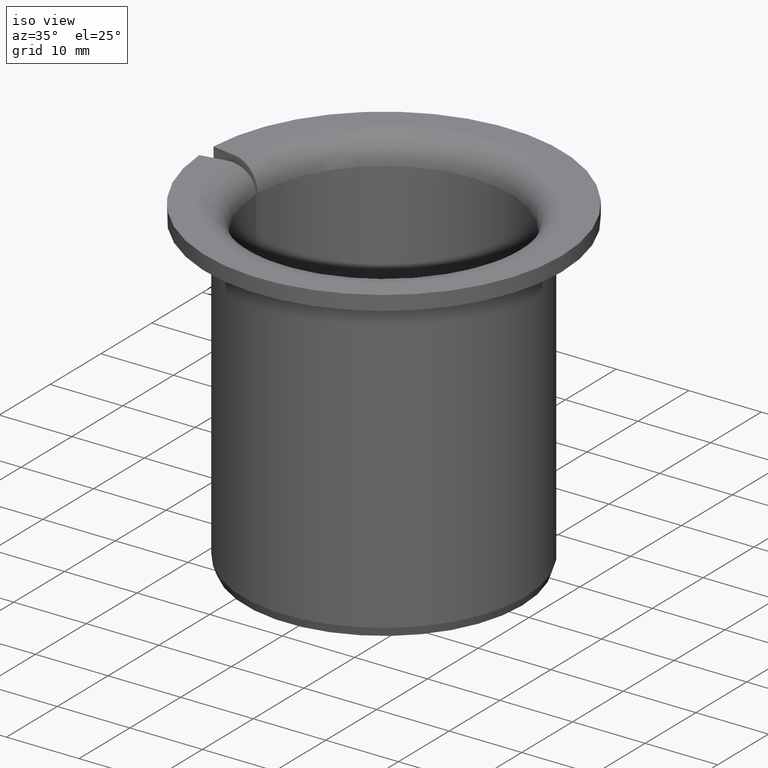
[diagram: clean part render]
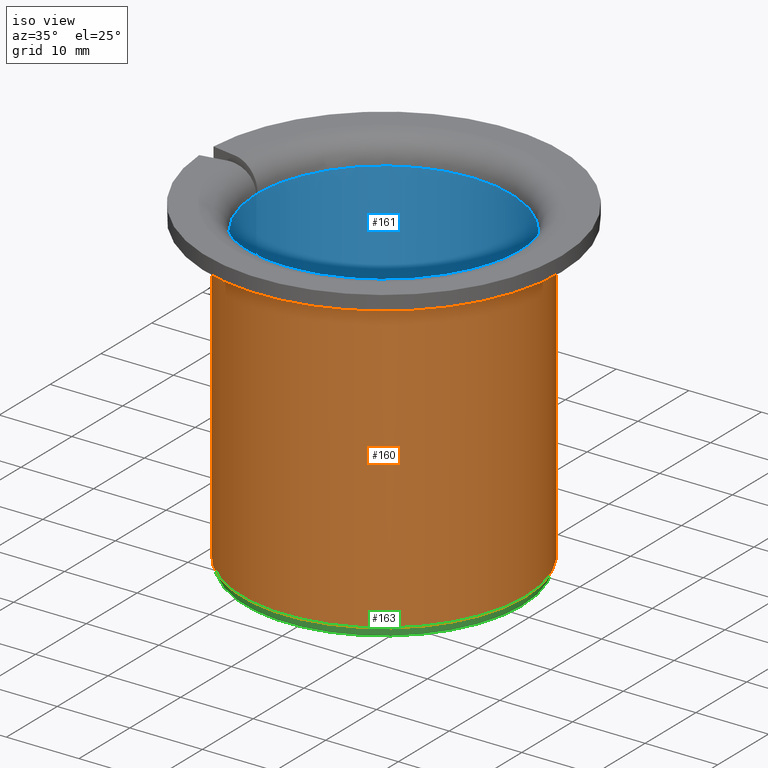
[diagram: same view with three faces highlighted in distinct colors, each labeled with its STEP entity id]
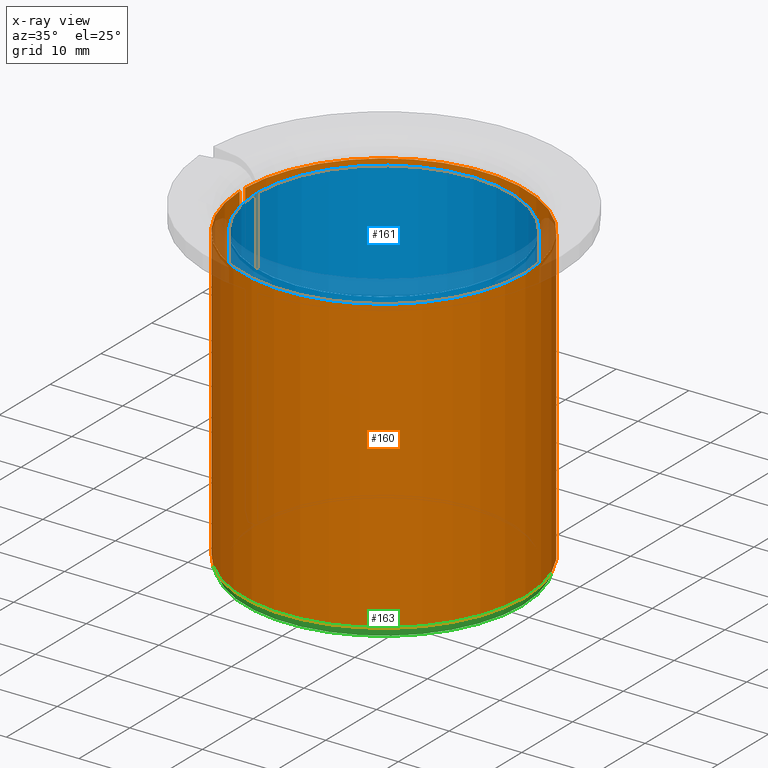
[diagram: x-ray of the same camera — body ghosted, the three highlighted faces saturated]
A machine part, iso view with three faces highlighted in distinct colors.
The next image is the same camera in x-ray (body ghosted, the three faces saturated) — at least one of them is partly hidden behind the body in this view.
Their STEP definitions:

[orange] entity #160 — the highlighted cylindrical surface (partial cylindrical patch) has radius 19.5 mm, axis along (-0, 0, -1).
#160=ADVANCED_FACE('',(#181),#182,.T.);
#181=FACE_OUTER_BOUND('',#206,.T.);
#182=CYLINDRICAL_SURFACE('',#207,0.0195);
#206=EDGE_LOOP('',(#271,#272,#273,#274));
#207=AXIS2_PLACEMENT_3D('',#275,#276,#277);
#271=ORIENTED_EDGE('',*,*,#330,.T.);
#272=ORIENTED_EDGE('',*,*,#336,.T.);
#273=ORIENTED_EDGE('',*,*,#337,.F.);
#274=ORIENTED_EDGE('',*,*,#317,.F.);
#275=CARTESIAN_POINT('',(0.0,0.0,0.0));
#276=DIRECTION('',(0.0,-6.12323399573677E-017,-1.0));
#277=DIRECTION('',(0.0,1.0,-6.12323399573677E-017));
#317=EDGE_CURVE('',#351,#353,#354,.T.);
#330=EDGE_CURVE('',#351,#374,#376,.T.);
#336=EDGE_CURVE('',#374,#384,#385,.T.);
#337=EDGE_CURVE('',#353,#384,#386,.T.);
#351=VERTEX_POINT('',#421);
#353=VERTEX_POINT('',#436);
#354=LINE('',#437,#438);
#374=VERTEX_POINT('',#486);
#376=CIRCLE('',#501,0.0195);
#384=VERTEX_POINT('',#512);
#385=LINE('',#513,#514);
#386=CIRCLE('',#515,0.0195);
#421=CARTESIAN_POINT('',(0.0194928579205826,-0.00052772160082575,0.0415));
#436=CARTESIAN_POINT('',(0.0194928579205826,-0.000527721600825753,0.0012));
#437=CARTESIAN_POINT('',(0.0194928579205826,-0.000527721600825752,-1.58123002031201E-020));
#438=VECTOR('',#529,1.0);
#486=CARTESIAN_POINT('',(0.0194928579205826,0.000527721600825756,0.0415));
#501=AXIS2_PLACEMENT_3D('',#547,#548,#549);
#512=CARTESIAN_POINT('',(0.0194928579205826,0.000527721600825755,0.0012));
#513=CARTESIAN_POINT('',(0.0194928579205826,0.000527721600825753,5.23181739225989E-021));
#514=VECTOR('',#559,1.0);
#515=AXIS2_PLACEMENT_3D('',#560,#561,#562);
#529=DIRECTION('',(0.0,-6.12323399573677E-017,-1.0));
#547=CARTESIAN_POINT('',(0.0,3.46944695195362E-018,0.0415));
#548=DIRECTION('',(0.0,-6.12323399573677E-017,-1.0));
#549=DIRECTION('',(0.0,1.0,-6.12323399573677E-017));
#559=DIRECTION('',(0.0,-6.12323399573677E-017,-1.0));
#560=CARTESIAN_POINT('',(0.0,0.0,0.0012));
#561=DIRECTION('',(0.0,-6.12323399573677E-017,-1.0));
#562=DIRECTION('',(0.0,1.0,-6.12323399573677E-017));

[blue] entity #161 — the highlighted cylindrical surface (partial cylindrical patch) has radius 17.5 mm, axis along (-0, 0, -1).
#161=ADVANCED_FACE('',(#183),#184,.F.);
#183=FACE_OUTER_BOUND('',#208,.T.);
#184=CYLINDRICAL_SURFACE('',#209,0.0175);
#208=EDGE_LOOP('',(#278,#279,#280,#281));
#209=AXIS2_PLACEMENT_3D('',#282,#283,#284);
#278=ORIENTED_EDGE('',*,*,#324,.T.);
#279=ORIENTED_EDGE('',*,*,#338,.T.);
#280=ORIENTED_EDGE('',*,*,#325,.F.);
#281=ORIENTED_EDGE('',*,*,#321,.F.);
#282=CARTESIAN_POINT('',(0.0,0.0,0.0));
#283=DIRECTION('',(0.0,-6.12323399573677E-017,-1.0));
#284=DIRECTION('',(0.0,1.0,-6.12323399573677E-017));
#321=EDGE_CURVE('',#359,#342,#361,.F.);
#324=EDGE_CURVE('',#359,#364,#366,.T.);
#325=EDGE_CURVE('',#342,#367,#368,.T.);
#338=EDGE_CURVE('',#364,#367,#387,.F.);
#342=VERTEX_POINT('',#392);
#359=VERTEX_POINT('',#447);
#361=LINE('',#452,#453);
#364=VERTEX_POINT('',#456);
#366=CIRCLE('',#461,0.0175);
#367=VERTEX_POINT('',#462);
#368=CIRCLE('',#463,0.0175);
#387=LINE('',#516,#517);
#392=CARTESIAN_POINT('',(0.0174991132321836,-0.00017617061961681,0.0415));
#447=CARTESIAN_POINT('',(0.0174991132321836,-0.000176170619616813,0.0005));
#452=CARTESIAN_POINT('',(0.0174991132321836,-0.000176170619616813,-3.7338589396852E-020));
#453=VECTOR('',#531,1.0);
#456=CARTESIAN_POINT('',(0.0174991132321836,0.000176170619616813,0.0005));
#461=AXIS2_PLACEMENT_3D('',#535,#536,#537);
#462=CARTESIAN_POINT('',(0.0174991132321836,0.000176170619616816,0.0415));
#463=AXIS2_PLACEMENT_3D('',#538,#539,#540);
#516=CARTESIAN_POINT('',(0.0174991132321836,0.000176170619616814,2.67581065859919E-020));
#517=VECTOR('',#563,1.0);
#531=DIRECTION('',(0.0,-6.12323399573677E-017,-1.0));
#535=CARTESIAN_POINT('',(0.0,0.0,0.0005));
#536=DIRECTION('',(0.0,-6.12323399573677E-017,-1.0));
#537=DIRECTION('',(0.0,1.0,-6.12323399573677E-017));
#538=CARTESIAN_POINT('',(0.0,3.46944695195362E-018,0.0415));
#539=DIRECTION('',(0.0,-6.12323399573677E-017,-1.0));
#540=DIRECTION('',(0.0,1.0,-6.12323399573677E-017));
#563=DIRECTION('',(0.0,-6.12323399573677E-017,-1.0));

[green] entity #163 — the highlighted conical surface has half-angle 20 deg.
#163=ADVANCED_FACE('',(#187),#188,.T.);
#187=FACE_OUTER_BOUND('',#212,.T.);
#188=CONICAL_SURFACE('',#213,0.0190632357188806,0.349065850398868);
#212=EDGE_LOOP('',(#292,#293,#294,#295));
#213=AXIS2_PLACEMENT_3D('',#296,#297,#298);
#292=ORIENTED_EDGE('',*,*,#337,.T.);
#293=ORIENTED_EDGE('',*,*,#341,.T.);
#294=ORIENTED_EDGE('',*,*,#339,.F.);
#295=ORIENTED_EDGE('',*,*,#318,.F.);
#296=CARTESIAN_POINT('',(0.0,0.0,-2.81283021884286E-020));
#297=DIRECTION('',(-0.0,6.12323399573677E-017,1.0));
#298=DIRECTION('',(0.0,-1.0,6.12323399573677E-017));
#318=EDGE_CURVE('',#353,#355,#356,.T.);
#337=EDGE_CURVE('',#353,#384,#386,.T.);
#339=EDGE_CURVE('',#355,#388,#389,.T.);
#341=EDGE_CURVE('',#384,#388,#391,.T.);
#353=VERTEX_POINT('',#436);
#355=VERTEX_POINT('',#439);
#356=B_SPLINE_CURVE_WITH_KNOTS('',3,(#440,#441,#442,#443),.UNSPECIFIED.,.F.,.F.,(4,4),(2.13110061065573E-007,0.00127891205483751),.UNSPECIFIED.);
#384=VERTEX_POINT('',#512);
#386=CIRCLE('',#515,0.0195);
#388=VERTEX_POINT('',#518);
#389=CIRCLE('',#519,0.0190632357188806);
#391=B_SPLINE_CURVE_WITH_KNOTS('',3,(#522,#523,#524,#525),.UNSPECIFIED.,.F.,.F.,(4,4),(2.13110061065573E-007,0.00127891205483751),.UNSPECIFIED.);
#436=CARTESIAN_POINT('',(0.0194928579205826,-0.000527721600825753,0.0012));
#439=CARTESIAN_POINT('',(0.0190578994383718,-0.000451026684923966,6.43083039248804E-019));
#440=CARTESIAN_POINT('',(0.0194928579205827,-0.000527721600825755,0.0012));
#441=CARTESIAN_POINT('',(0.0193479040463929,-0.000502162321847883,0.000799987934916398));
#442=CARTESIAN_POINT('',(0.0192029186392597,-0.000476597482761293,0.000399987650145253));
#443=CARTESIAN_POINT('',(0.0190578994383717,-0.000451026684923968,4.89730107023086E-018));
#512=CARTESIAN_POINT('',(0.0194928579205826,0.000527721600825755,0.0012));
#515=AXIS2_PLACEMENT_3D('',#560,#561,#562);
#518=CARTESIAN_POINT('',(0.0190578994383718,0.000451026684923967,-5.57457214895375E-020));
#519=AXIS2_PLACEMENT_3D('',#564,#565,#566);
#522=CARTESIAN_POINT('',(0.0194928579205827,0.000527721600825755,0.0012));
#523=CARTESIAN_POINT('',(0.0193479040463929,0.000502162321847883,0.000799987934916398));
#524=CARTESIAN_POINT('',(0.0192029186392597,0.000476597482761293,0.000399987650145253));
#525=CARTESIAN_POINT('',(0.0190578994383717,0.000451026684923968,4.76385711392694E-018));
#560=CARTESIAN_POINT('',(0.0,0.0,0.0012));
#561=DIRECTION('',(0.0,-6.12323399573677E-017,-1.0));
#562=DIRECTION('',(0.0,1.0,-6.12323399573677E-017));
#564=CARTESIAN_POINT('',(0.0,0.0,-2.81283021884286E-020));
#565=DIRECTION('',(0.0,-6.12323399573677E-017,-1.0));
#566=DIRECTION('',(0.0,1.0,-6.12323399573677E-017));